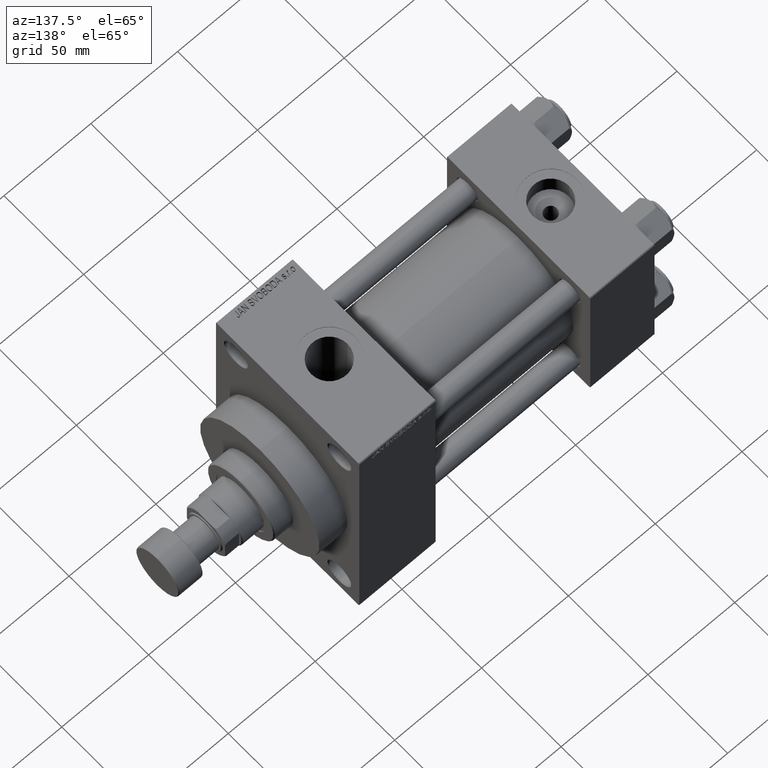
[diagram: clean part render]
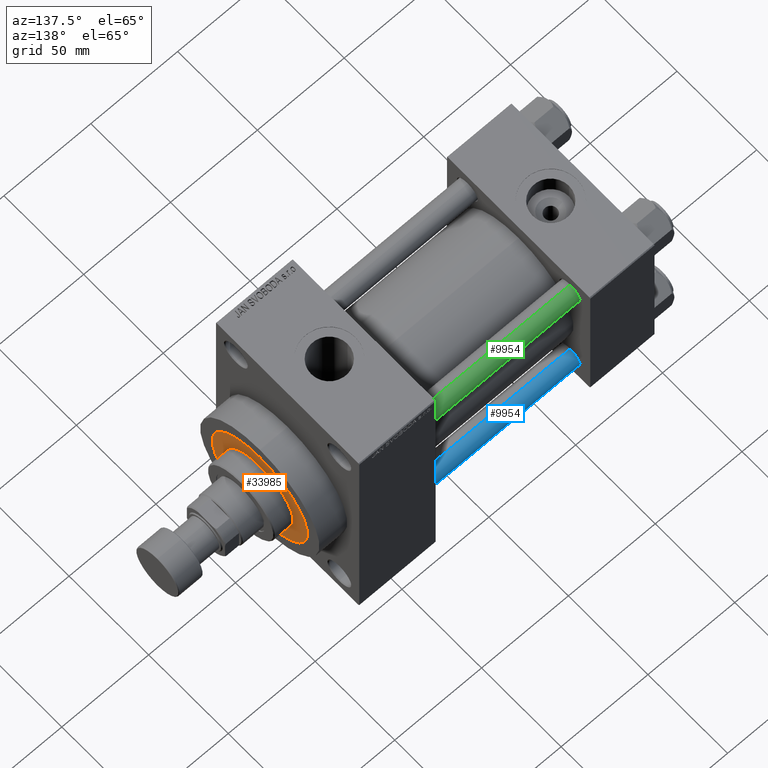
[diagram: same view with three faces highlighted in distinct colors, each labeled with its STEP entity id]
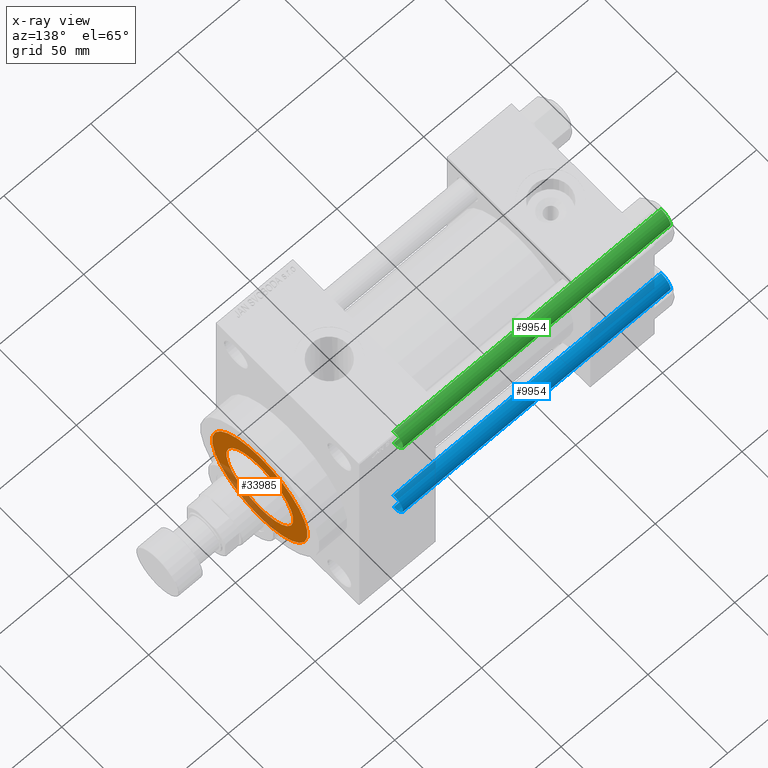
[diagram: x-ray of the same camera — body ghosted, the three highlighted faces saturated]
A machine part, auxiliary view with three faces highlighted in distinct colors.
The next image is the same camera in x-ray (body ghosted, the three faces saturated) — at least one of them is partly hidden behind the body in this view.
Their STEP definitions:

[orange] entity #33985 — the highlighted planar face has unit normal (1, 0, 0).
#1888 = FACE_OUTER_BOUND ( 'NONE', #9893, .T. ) ;
#2100 = AXIS2_PLACEMENT_3D ( 'NONE', #10489, #2777, #3275 ) ;
#2777 = DIRECTION ( 'NONE',  ( 0.000000000000000000, 0.000000000000000000, 1.000000000000000000 ) ) ;
#2811 = EDGE_LOOP ( 'NONE', ( #34724, #42437 ) ) ;
#3209 = AXIS2_PLACEMENT_3D ( 'NONE', #35813, #38476, #32210 ) ;
#3275 = DIRECTION ( 'NONE',  ( 1.000000000000000000, 0.000000000000000000, 0.000000000000000000 ) ) ;
#7456 = AXIS2_PLACEMENT_3D ( 'NONE', #41766, #34068, #30685 ) ;
#9605 = CARTESIAN_POINT ( 'NONE',  ( 0.000000000000000000, 0.000000000000000000, 43.25999999999999801 ) ) ;
#9752 = CIRCLE ( 'NONE', #7456, 30.00000000000000000 ) ;
#9893 = EDGE_LOOP ( 'NONE', ( #23347, #16351 ) ) ;
#10453 = EDGE_CURVE ( 'NONE', #12709, #32004, #34440, .T. ) ;
#10489 = CARTESIAN_POINT ( 'NONE',  ( 0.000000000000000000, 0.000000000000000000, 43.25999999999999801 ) ) ;
#12709 = VERTEX_POINT ( 'NONE', #20114 ) ;
#12973 = PLANE ( 'NONE',  #23520 ) ;
#13243 = CARTESIAN_POINT ( 'NONE',  ( 21.00000000000000000, 2.571758278209441661E-15, 43.25999999999999801 ) ) ;
#16337 = DIRECTION ( 'NONE',  ( 0.000000000000000000, 0.000000000000000000, 1.000000000000000000 ) ) ;
#16351 = ORIENTED_EDGE ( 'NONE', *, *, #36187, .T. ) ;
#17429 = DIRECTION ( 'NONE',  ( 1.000000000000000000, 0.000000000000000000, 0.000000000000000000 ) ) ;
#20114 = CARTESIAN_POINT ( 'NONE',  ( -30.00000000000000000, 0.000000000000000000, 43.25999999999999801 ) ) ;
#20815 = CARTESIAN_POINT ( 'NONE',  ( 0.000000000000000000, 0.000000000000000000, 43.25999999999999801 ) ) ;
#22517 = CARTESIAN_POINT ( 'NONE',  ( -21.00000000000000000, 0.000000000000000000, 43.25999999999999801 ) ) ;
#23347 = ORIENTED_EDGE ( 'NONE', *, *, #10453, .T. ) ;
#23520 = AXIS2_PLACEMENT_3D ( 'NONE', #9605, #16337, #31059 ) ;
#24039 = EDGE_CURVE ( 'NONE', #37923, #46312, #30134, .T. ) ;
#24293 = FACE_BOUND ( 'NONE', #2811, .T. ) ;
#29093 = AXIS2_PLACEMENT_3D ( 'NONE', #20815, #35533, #17429 ) ;
#30134 = CIRCLE ( 'NONE', #3209, 21.00000000000000000 ) ;
#30685 = DIRECTION ( 'NONE',  ( 1.000000000000000000, 0.000000000000000000, 0.000000000000000000 ) ) ;
#31022 = CARTESIAN_POINT ( 'NONE',  ( 30.00000000000000000, 3.673940397442059178E-15, 43.25999999999999801 ) ) ;
#31059 = DIRECTION ( 'NONE',  ( 1.000000000000000000, 0.000000000000000000, -0.000000000000000000 ) ) ;
#32004 = VERTEX_POINT ( 'NONE', #31022 ) ;
#32123 = CIRCLE ( 'NONE', #2100, 21.00000000000000000 ) ;
#32210 = DIRECTION ( 'NONE',  ( 1.000000000000000000, 0.000000000000000000, 0.000000000000000000 ) ) ;
#33985 = ADVANCED_FACE ( 'NONE', ( #24293, #1888 ), #12973, .T. ) ;
#34068 = DIRECTION ( 'NONE',  ( 0.000000000000000000, 0.000000000000000000, 1.000000000000000000 ) ) ;
#34440 = CIRCLE ( 'NONE', #29093, 30.00000000000000000 ) ;
#34724 = ORIENTED_EDGE ( 'NONE', *, *, #24039, .F. ) ;
#35533 = DIRECTION ( 'NONE',  ( 0.000000000000000000, 0.000000000000000000, 1.000000000000000000 ) ) ;
#35813 = CARTESIAN_POINT ( 'NONE',  ( 0.000000000000000000, 0.000000000000000000, 43.25999999999999801 ) ) ;
#36187 = EDGE_CURVE ( 'NONE', #32004, #12709, #9752, .T. ) ;
#37923 = VERTEX_POINT ( 'NONE', #22517 ) ;
#38476 = DIRECTION ( 'NONE',  ( 0.000000000000000000, 0.000000000000000000, 1.000000000000000000 ) ) ;
#40393 = EDGE_CURVE ( 'NONE', #46312, #37923, #32123, .T. ) ;
#41766 = CARTESIAN_POINT ( 'NONE',  ( 0.000000000000000000, 0.000000000000000000, 43.25999999999999801 ) ) ;
#42437 = ORIENTED_EDGE ( 'NONE', *, *, #40393, .F. ) ;
#46312 = VERTEX_POINT ( 'NONE', #13243 ) ;

[blue] entity #9954 — the highlighted cylindrical surface (edge-blend (fillet) strip) has radius 6 mm, axis along (-1, -0, 0).
#1316 = VERTEX_POINT ( 'NONE', #24518 ) ;
#2776 = ORIENTED_EDGE ( 'NONE', *, *, #38635, .F. ) ;
#2885 = CARTESIAN_POINT ( 'NONE',  ( 0.000000000000000000, 0.000000000000000000, 0.4999999999999726885 ) ) ;
#4611 = CIRCLE ( 'NONE', #31562, 6.000000000000000888 ) ;
#5604 = CYLINDRICAL_SURFACE ( 'NONE', #8265, 6.000000000000000888 ) ;
#8265 = AXIS2_PLACEMENT_3D ( 'NONE', #12574, #31872, #38622 ) ;
#9954 = ADVANCED_FACE ( 'NONE', ( #46559 ), #5604, .T. ) ;
#12227 = EDGE_CURVE ( 'NONE', #1316, #28582, #37323, .T. ) ;
#12574 = CARTESIAN_POINT ( 'NONE',  ( 0.000000000000000000, 0.000000000000000000, 155.0000000000000000 ) ) ;
#14320 = CIRCLE ( 'NONE', #25890, 6.000000000000000888 ) ;
#15953 = CARTESIAN_POINT ( 'NONE',  ( -6.000000000000000888, 0.000000000000000000, 154.5000000000000000 ) ) ;
#16032 = EDGE_LOOP ( 'NONE', ( #43871, #20598, #28195, #2776 ) ) ;
#18213 = VECTOR ( 'NONE', #21320, 1000.000000000000000 ) ;
#20598 = ORIENTED_EDGE ( 'NONE', *, *, #12227, .T. ) ;
#21320 = DIRECTION ( 'NONE',  ( -0.000000000000000000, -0.000000000000000000, -1.000000000000000000 ) ) ;
#21684 = DIRECTION ( 'NONE',  ( 1.000000000000000000, 0.000000000000000000, 0.000000000000000000 ) ) ;
#24455 = CARTESIAN_POINT ( 'NONE',  ( -6.000000000000000888, 0.000000000000000000, 155.0000000000000000 ) ) ;
#24518 = CARTESIAN_POINT ( 'NONE',  ( 6.000000000000000888, 7.347880794884120722E-16, 154.5000000000000000 ) ) ;
#25890 = AXIS2_PLACEMENT_3D ( 'NONE', #2885, #46987, #21684 ) ;
#26757 = CARTESIAN_POINT ( 'NONE',  ( 6.000000000000000888, 7.347880794884120722E-16, 0.4999999999999726885 ) ) ;
#26929 = CARTESIAN_POINT ( 'NONE',  ( 6.000000000000000888, 7.347880794884120722E-16, 155.0000000000000000 ) ) ;
#27126 = VERTEX_POINT ( 'NONE', #44490 ) ;
#28128 = CARTESIAN_POINT ( 'NONE',  ( 0.000000000000000000, 0.000000000000000000, 154.5000000000000000 ) ) ;
#28167 = VERTEX_POINT ( 'NONE', #15953 ) ;
#28195 = ORIENTED_EDGE ( 'NONE', *, *, #38191, .T. ) ;
#28582 = VERTEX_POINT ( 'NONE', #26757 ) ;
#31562 = AXIS2_PLACEMENT_3D ( 'NONE', #28128, #42834, #34897 ) ;
#31872 = DIRECTION ( 'NONE',  ( -0.000000000000000000, -0.000000000000000000, -1.000000000000000000 ) ) ;
#34897 = DIRECTION ( 'NONE',  ( 1.000000000000000000, 0.000000000000000000, 0.000000000000000000 ) ) ;
#37323 = LINE ( 'NONE', #26929, #37573 ) ;
#37573 = VECTOR ( 'NONE', #45011, 1000.000000000000000 ) ;
#38191 = EDGE_CURVE ( 'NONE', #28582, #27126, #14320, .T. ) ;
#38622 = DIRECTION ( 'NONE',  ( -1.000000000000000000, 0.000000000000000000, 0.000000000000000000 ) ) ;
#38635 = EDGE_CURVE ( 'NONE', #28167, #27126, #46879, .T. ) ;
#42834 = DIRECTION ( 'NONE',  ( 0.000000000000000000, 0.000000000000000000, -1.000000000000000000 ) ) ;
#43871 = ORIENTED_EDGE ( 'NONE', *, *, #46992, .T. ) ;
#44490 = CARTESIAN_POINT ( 'NONE',  ( -6.000000000000000888, 0.000000000000000000, 0.4999999999999726885 ) ) ;
#45011 = DIRECTION ( 'NONE',  ( -0.000000000000000000, -0.000000000000000000, -1.000000000000000000 ) ) ;
#46559 = FACE_OUTER_BOUND ( 'NONE', #16032, .T. ) ;
#46879 = LINE ( 'NONE', #24455, #18213 ) ;
#46987 = DIRECTION ( 'NONE',  ( -0.000000000000000000, -0.000000000000000000, 1.000000000000000000 ) ) ;
#46992 = EDGE_CURVE ( 'NONE', #28167, #1316, #4611, .T. ) ;

[green] entity #9954 — the highlighted cylindrical surface (edge-blend (fillet) strip) has radius 6 mm, axis along (1, -0, -0).
#1316 = VERTEX_POINT ( 'NONE', #24518 ) ;
#2776 = ORIENTED_EDGE ( 'NONE', *, *, #38635, .F. ) ;
#2885 = CARTESIAN_POINT ( 'NONE',  ( 0.000000000000000000, 0.000000000000000000, 0.4999999999999726885 ) ) ;
#4611 = CIRCLE ( 'NONE', #31562, 6.000000000000000888 ) ;
#5604 = CYLINDRICAL_SURFACE ( 'NONE', #8265, 6.000000000000000888 ) ;
#8265 = AXIS2_PLACEMENT_3D ( 'NONE', #12574, #31872, #38622 ) ;
#9954 = ADVANCED_FACE ( 'NONE', ( #46559 ), #5604, .T. ) ;
#12227 = EDGE_CURVE ( 'NONE', #1316, #28582, #37323, .T. ) ;
#12574 = CARTESIAN_POINT ( 'NONE',  ( 0.000000000000000000, 0.000000000000000000, 155.0000000000000000 ) ) ;
#14320 = CIRCLE ( 'NONE', #25890, 6.000000000000000888 ) ;
#15953 = CARTESIAN_POINT ( 'NONE',  ( -6.000000000000000888, 0.000000000000000000, 154.5000000000000000 ) ) ;
#16032 = EDGE_LOOP ( 'NONE', ( #43871, #20598, #28195, #2776 ) ) ;
#18213 = VECTOR ( 'NONE', #21320, 1000.000000000000000 ) ;
#20598 = ORIENTED_EDGE ( 'NONE', *, *, #12227, .T. ) ;
#21320 = DIRECTION ( 'NONE',  ( -0.000000000000000000, -0.000000000000000000, -1.000000000000000000 ) ) ;
#21684 = DIRECTION ( 'NONE',  ( 1.000000000000000000, 0.000000000000000000, 0.000000000000000000 ) ) ;
#24455 = CARTESIAN_POINT ( 'NONE',  ( -6.000000000000000888, 0.000000000000000000, 155.0000000000000000 ) ) ;
#24518 = CARTESIAN_POINT ( 'NONE',  ( 6.000000000000000888, 7.347880794884120722E-16, 154.5000000000000000 ) ) ;
#25890 = AXIS2_PLACEMENT_3D ( 'NONE', #2885, #46987, #21684 ) ;
#26757 = CARTESIAN_POINT ( 'NONE',  ( 6.000000000000000888, 7.347880794884120722E-16, 0.4999999999999726885 ) ) ;
#26929 = CARTESIAN_POINT ( 'NONE',  ( 6.000000000000000888, 7.347880794884120722E-16, 155.0000000000000000 ) ) ;
#27126 = VERTEX_POINT ( 'NONE', #44490 ) ;
#28128 = CARTESIAN_POINT ( 'NONE',  ( 0.000000000000000000, 0.000000000000000000, 154.5000000000000000 ) ) ;
#28167 = VERTEX_POINT ( 'NONE', #15953 ) ;
#28195 = ORIENTED_EDGE ( 'NONE', *, *, #38191, .T. ) ;
#28582 = VERTEX_POINT ( 'NONE', #26757 ) ;
#31562 = AXIS2_PLACEMENT_3D ( 'NONE', #28128, #42834, #34897 ) ;
#31872 = DIRECTION ( 'NONE',  ( -0.000000000000000000, -0.000000000000000000, -1.000000000000000000 ) ) ;
#34897 = DIRECTION ( 'NONE',  ( 1.000000000000000000, 0.000000000000000000, 0.000000000000000000 ) ) ;
#37323 = LINE ( 'NONE', #26929, #37573 ) ;
#37573 = VECTOR ( 'NONE', #45011, 1000.000000000000000 ) ;
#38191 = EDGE_CURVE ( 'NONE', #28582, #27126, #14320, .T. ) ;
#38622 = DIRECTION ( 'NONE',  ( -1.000000000000000000, 0.000000000000000000, 0.000000000000000000 ) ) ;
#38635 = EDGE_CURVE ( 'NONE', #28167, #27126, #46879, .T. ) ;
#42834 = DIRECTION ( 'NONE',  ( 0.000000000000000000, 0.000000000000000000, -1.000000000000000000 ) ) ;
#43871 = ORIENTED_EDGE ( 'NONE', *, *, #46992, .T. ) ;
#44490 = CARTESIAN_POINT ( 'NONE',  ( -6.000000000000000888, 0.000000000000000000, 0.4999999999999726885 ) ) ;
#45011 = DIRECTION ( 'NONE',  ( -0.000000000000000000, -0.000000000000000000, -1.000000000000000000 ) ) ;
#46559 = FACE_OUTER_BOUND ( 'NONE', #16032, .T. ) ;
#46879 = LINE ( 'NONE', #24455, #18213 ) ;
#46987 = DIRECTION ( 'NONE',  ( -0.000000000000000000, -0.000000000000000000, 1.000000000000000000 ) ) ;
#46992 = EDGE_CURVE ( 'NONE', #28167, #1316, #4611, .T. ) ;